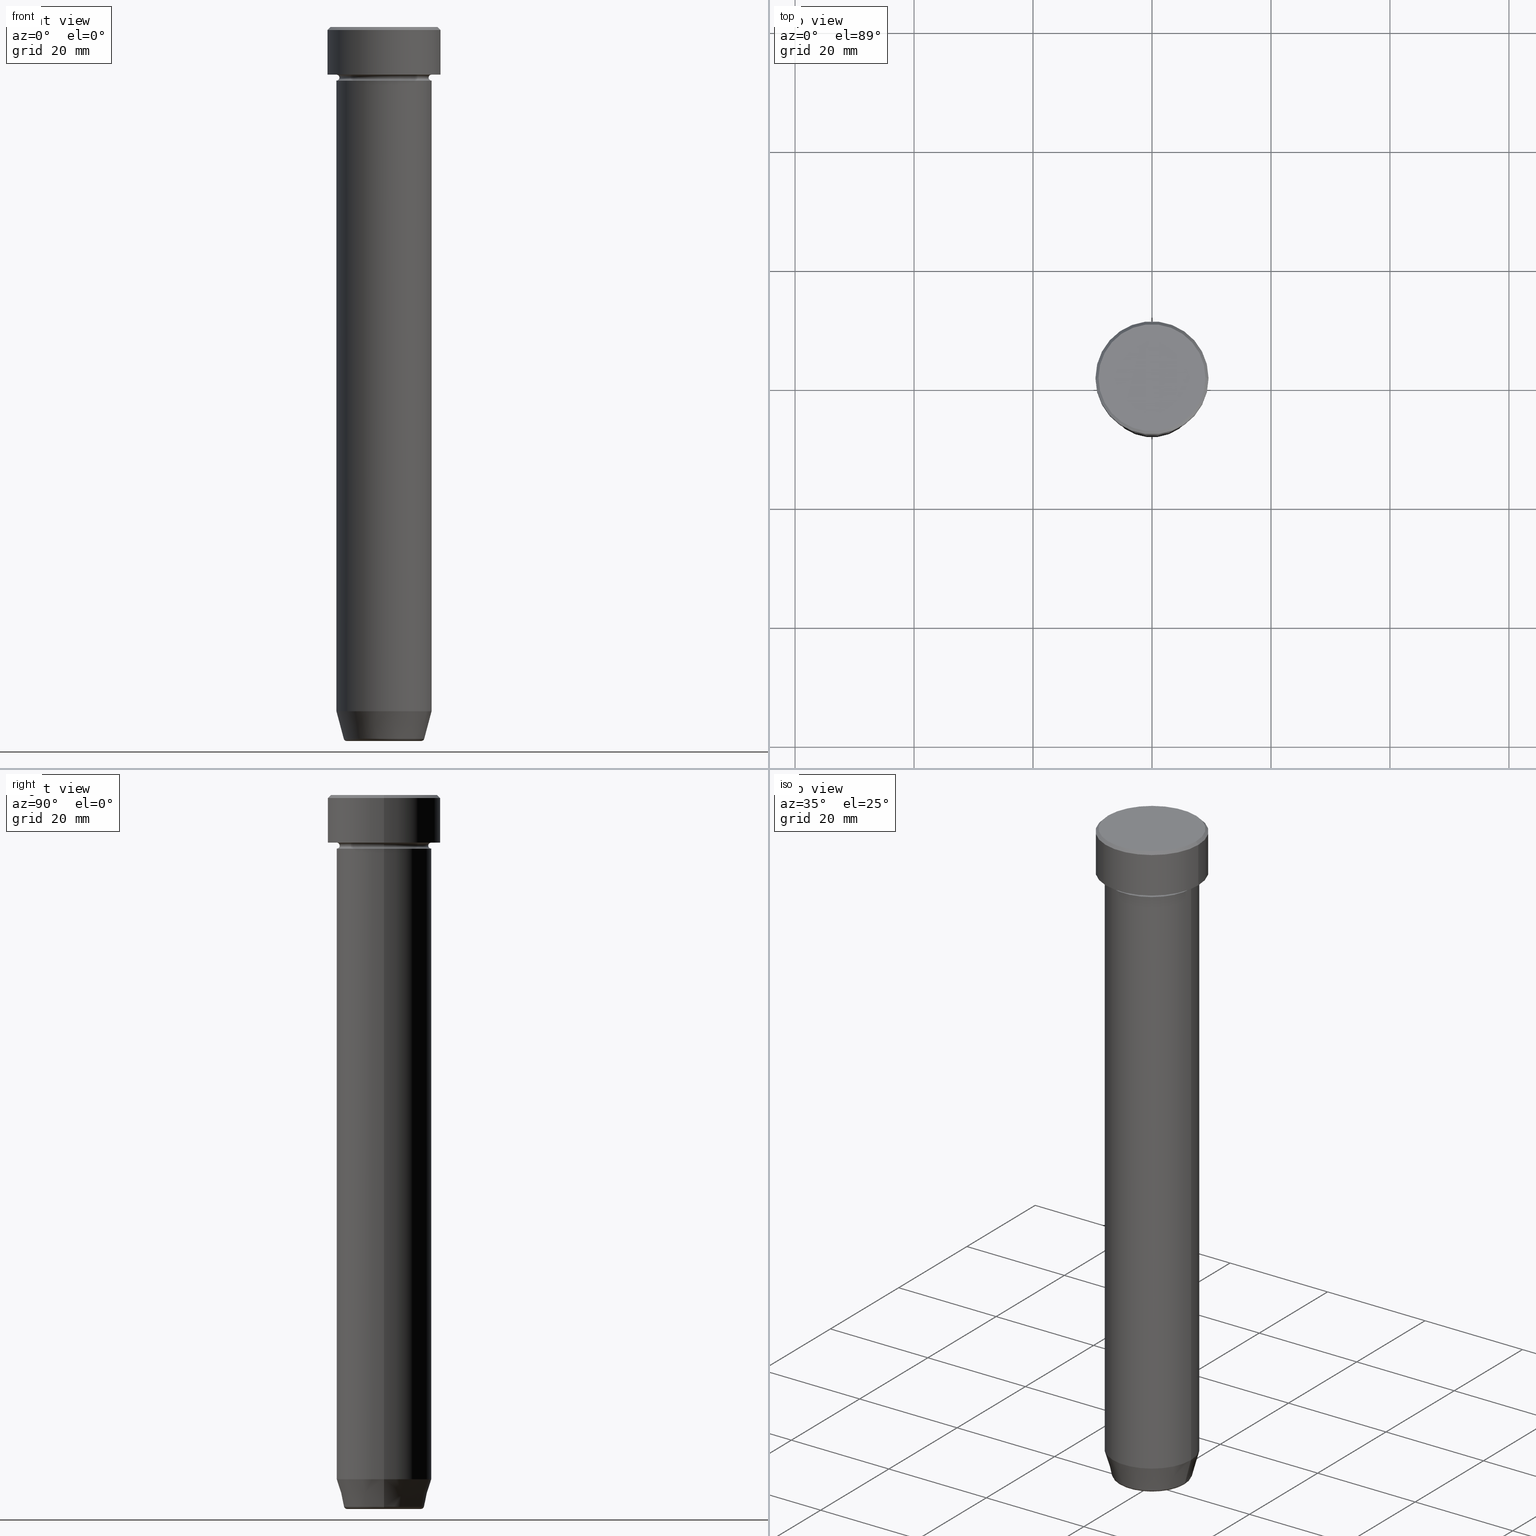
[diagram: canonical four-view strip — front | top / right | iso, engineering-drawing reading convention]
A machine part, canonical four-view strip (front | top / right | iso — engineering-drawing reading convention). The complete STEP part file that produces these views, byte-faithful:
ISO-10303-21;
HEADER;
FILE_DESCRIPTION (( 'STEP AP203' ),
    '1' );
FILE_NAME ('b387.STEP',
    '2024-01-02T22:11:33',
    ( '' ),
    ( '' ),
    'SwSTEP 2.0',
    'SolidWorks 2019',
    '' );
FILE_SCHEMA (( 'CONFIG_CONTROL_DESIGN' ));
ENDSEC;

DATA;
#1 = CONICAL_SURFACE ( 'NONE', #483, 6.660254037844381081, 0.2617993877991502405 ) ;
#2 = AXIS2_PLACEMENT_3D ( 'NONE', #136, #274, #544 ) ;
#3 = DIRECTION ( 'NONE',  ( -0.000000000000000000, -0.000000000000000000, 1.000000000000000000 ) ) ;
#4 = CC_DESIGN_PERSON_AND_ORGANIZATION_ASSIGNMENT ( #125, #270, ( #247 ) ) ;
#5 = VERTEX_POINT ( 'NONE', #123 ) ;
#6 = DIRECTION ( 'NONE',  ( 1.000000000000000000, 0.000000000000000000, 0.000000000000000000 ) ) ;
#7 = ORIENTED_EDGE ( 'NONE', *, *, #16, .F. ) ;
#8 = DIRECTION ( 'NONE',  ( 1.000000000000000000, 0.000000000000000000, 0.000000000000000000 ) ) ;
#9 = EDGE_LOOP ( 'NONE', ( #53, #69, #232, #341 ) ) ;
#10 = AXIS2_PLACEMENT_3D ( 'NONE', #20, #207, #579 ) ;
#11 = EDGE_CURVE ( 'NONE', #200, #164, #586, .T. ) ;
#12 = DIRECTION ( 'NONE',  ( 1.000000000000000000, 0.000000000000000000, 0.000000000000000000 ) ) ;
#13 = DIRECTION ( 'NONE',  ( -0.000000000000000000, -0.000000000000000000, 1.000000000000000000 ) ) ;
#14 = ORIENTED_EDGE ( 'NONE', *, *, #144, .F. ) ;
#15 = DIRECTION ( 'NONE',  ( 1.000000000000000000, 0.000000000000000000, 0.000000000000000000 ) ) ;
#16 = EDGE_CURVE ( 'NONE', #438, #337, #241, .T. ) ;
#17 = VERTEX_POINT ( 'NONE', #350 ) ;
#18 = TOROIDAL_SURFACE ( 'NONE', #70, 8.000000000000000000, 0.5000000000000000000 ) ;
#19 = LOCAL_TIME ( 23, 11, 33.00000000000000000, #493 ) ;
#20 = CARTESIAN_POINT ( 'NONE',  ( -8.000000000000000000, 0.000000000000000000, -8.500000000000000000 ) ) ;
#21 = ORIENTED_EDGE ( 'NONE', *, *, #439, .T. ) ;
#22 = CC_DESIGN_DATE_AND_TIME_ASSIGNMENT ( #283, #328, ( #61 ) ) ;
#23 = DIRECTION ( 'NONE',  ( -0.000000000000000000, -0.000000000000000000, 1.000000000000000000 ) ) ;
#24 = CYLINDRICAL_SURFACE ( 'NONE', #184, 8.000000000000000000 ) ;
#25 = ORIENTED_EDGE ( 'NONE', *, *, #504, .T. ) ;
#26 = DIRECTION ( 'NONE',  ( 1.000000000000000000, 0.000000000000000000, 0.000000000000000000 ) ) ;
#27 = ORIENTED_EDGE ( 'NONE', *, *, #11, .T. ) ;
#28 = VERTEX_POINT ( 'NONE', #577 ) ;
#29 = EDGE_CURVE ( 'NONE', #337, #196, #80, .T. ) ;
#30 = CIRCLE ( 'NONE', #547, 8.000000000000000000 ) ;
#31 = DIRECTION ( 'NONE',  ( 0.000000000000000000, 0.000000000000000000, -1.000000000000000000 ) ) ;
#32 = CC_DESIGN_SECURITY_CLASSIFICATION ( #61, ( #247 ) ) ;
#33 = CARTESIAN_POINT ( 'NONE',  ( 0.000000000000000000, 0.000000000000000000, -8.000000000000000000 ) ) ;
#34 = CARTESIAN_POINT ( 'NONE',  ( -8.000000000000000000, 9.797174393178825657E-16, 0.000000000000000000 ) ) ;
#35 = DIRECTION ( 'NONE',  ( 0.000000000000000000, 0.000000000000000000, -1.000000000000000000 ) ) ;
#36 = EDGE_CURVE ( 'NONE', #478, #438, #273, .T. ) ;
#37 = VECTOR ( 'NONE', #42, 1000.000000000000000 ) ;
#38 = CARTESIAN_POINT ( 'NONE',  ( -8.000000000000000000, 9.797174393178825657E-16, -9.000000000000001776 ) ) ;
#39 = CC_DESIGN_APPROVAL ( #460, ( #209 ) ) ;
#40 = ORIENTED_EDGE ( 'NONE', *, *, #194, .F. ) ;
#41 = PERSON_AND_ORGANIZATION_ROLE ( 'creator' ) ;
#42 = DIRECTION ( 'NONE',  ( -0.000000000000000000, -0.000000000000000000, 1.000000000000000000 ) ) ;
#43 = EDGE_CURVE ( 'NONE', #417, #256, #357, .T. ) ;
#44 = FACE_OUTER_BOUND ( 'NONE', #56, .T. ) ;
#45 = CLOSED_SHELL ( 'NONE', ( #340, #111, #542, #428, #57, #557, #524, #302 ) ) ;
#46 = EDGE_LOOP ( 'NONE', ( #162, #27, #395, #376 ) ) ;
#47 = CIRCLE ( 'NONE', #203, 6.276590543854900339 ) ;
#48 = LINE ( 'NONE', #199, #258 ) ;
#49 = ORIENTED_EDGE ( 'NONE', *, *, #327, .T. ) ;
#50 = AXIS2_PLACEMENT_3D ( 'NONE', #89, #451, #174 ) ;
#51 = AXIS2_PLACEMENT_3D ( 'NONE', #138, #31, #450 ) ;
#52 = CARTESIAN_POINT ( 'NONE',  ( 7.500000000000000000, 0.000000000000000000, -8.500000000000000000 ) ) ;
#53 = ORIENTED_EDGE ( 'NONE', *, *, #364, .F. ) ;
#54 = UNCERTAINTY_MEASURE_WITH_UNIT (LENGTH_MEASURE( 1.000000000000000082E-05 ), #128, 'distance_accuracy_value', 'NONE');
#55 = CARTESIAN_POINT ( 'NONE',  ( 0.000000000000000000, 0.000000000000000000, -119.5000000000000000 ) ) ;
#56 = EDGE_LOOP ( 'NONE', ( #330, #468, #214, #308 ) ) ;
#57 = ADVANCED_FACE ( 'NONE', ( #435 ), #24, .T. ) ;
#58 = CARTESIAN_POINT ( 'NONE',  ( 0.000000000000000000, 0.000000000000000000, -8.500000000000000000 ) ) ;
#59 = ORIENTED_EDGE ( 'NONE', *, *, #372, .T. ) ;
#60 = TOROIDAL_SURFACE ( 'NONE', #414, 8.000000000000000000, 0.5000000000000000000 ) ;
#61 = SECURITY_CLASSIFICATION ( '', '', #358 ) ;
#62 = FACE_OUTER_BOUND ( 'NONE', #78, .T. ) ;
#63 = ORIENTED_EDGE ( 'NONE', *, *, #406, .F. ) ;
#64 = EDGE_CURVE ( 'NONE', #196, #417, #107, .T. ) ;
#65 = APPLICATION_CONTEXT ( 'configuration controlled 3d designs of mechanical parts and assemblies' ) ;
#66 = DIRECTION ( 'NONE',  ( -1.000000000000000000, 0.000000000000000000, -0.000000000000000000 ) ) ;
#67 = DIRECTION ( 'NONE',  ( -0.000000000000000000, -0.000000000000000000, 1.000000000000000000 ) ) ;
#68 = CARTESIAN_POINT ( 'NONE',  ( 0.000000000000000000, 0.000000000000000000, 0.000000000000000000 ) ) ;
#69 = ORIENTED_EDGE ( 'NONE', *, *, #228, .T. ) ;
#70 = AXIS2_PLACEMENT_3D ( 'NONE', #336, #342, #514 ) ;
#71 = CIRCLE ( 'NONE', #345, 8.000000000000000000 ) ;
#72 = AXIS2_PLACEMENT_3D ( 'NONE', #68, #254, #75 ) ;
#73 = DIRECTION ( 'NONE',  ( 1.224646799147353207E-16, 1.000000000000000000, 0.000000000000000000 ) ) ;
#74 = ORIENTED_EDGE ( 'NONE', *, *, #64, .F. ) ;
#75 = DIRECTION ( 'NONE',  ( 1.000000000000000000, 0.000000000000000000, 0.000000000000000000 ) ) ;
#76 = ORIENTED_EDGE ( 'NONE', *, *, #504, .F. ) ;
#77 = EDGE_CURVE ( 'NONE', #572, #478, #47, .T. ) ;
#78 = EDGE_LOOP ( 'NONE', ( #567, #512, #227, #505 ) ) ;
#79 = VECTOR ( 'NONE', #314, 1000.000000000000000 ) ;
#80 = LINE ( 'NONE', #537, #331 ) ;
#81 = CIRCLE ( 'NONE', #215, 6.276590543854900339 ) ;
#82 = DATE_TIME_ROLE ( 'creation_date' ) ;
#83 =( GEOMETRIC_REPRESENTATION_CONTEXT ( 3 ) GLOBAL_UNCERTAINTY_ASSIGNED_CONTEXT ( ( #54 ) ) GLOBAL_UNIT_ASSIGNED_CONTEXT ( ( #128, #173, #225 ) ) REPRESENTATION_CONTEXT ( 'NONE', 'WORKASPACE' ) );
#84 = CARTESIAN_POINT ( 'NONE',  ( 0.000000000000000000, 0.000000000000000000, -22.00000000000000000 ) ) ;
#85 = EDGE_CURVE ( 'NONE', #455, #562, #588, .T. ) ;
#86 = DIRECTION ( 'NONE',  ( 1.000000000000000000, 0.000000000000000000, 0.000000000000000000 ) ) ;
#87 = AXIS2_PLACEMENT_3D ( 'NONE', #208, #67, #389 ) ;
#88 = PRODUCT_RELATED_PRODUCT_CATEGORY ( 'detail', '', ( #459 ) ) ;
#89 = CARTESIAN_POINT ( 'NONE',  ( 0.000000000000000000, 0.000000000000000000, -114.9999999999999858 ) ) ;
#90 = APPROVAL_ROLE ( '' ) ;
#91 = VECTOR ( 'NONE', #221, 1000.000000000000000 ) ;
#92 = CARTESIAN_POINT ( 'NONE',  ( 0.000000000000000000, 0.000000000000000000, -22.00000000000000000 ) ) ;
#93 = EDGE_CURVE ( 'NONE', #438, #417, #529, .T. ) ;
#94 = DIRECTION ( 'NONE',  ( 1.000000000000000000, 0.000000000000000000, 0.000000000000000000 ) ) ;
#95 = VERTEX_POINT ( 'NONE', #392 ) ;
#96 = DIRECTION ( 'NONE',  ( -0.000000000000000000, -0.000000000000000000, 1.000000000000000000 ) ) ;
#97 = VERTEX_POINT ( 'NONE', #575 ) ;
#98 = CARTESIAN_POINT ( 'NONE',  ( 8.000000000000000000, 0.000000000000000000, -9.000000000000001776 ) ) ;
#99 = ORIENTED_EDGE ( 'NONE', *, *, #156, .F. ) ;
#100 = AXIS2_PLACEMENT_3D ( 'NONE', #471, #522, #234 ) ;
#101 = LOCAL_TIME ( 23, 11, 33.00000000000000000, #179 ) ;
#102 = SHAPE_DEFINITION_REPRESENTATION ( #539, #477 ) ;
#103 = DIRECTION ( 'NONE',  ( -0.000000000000000000, -0.000000000000000000, 1.000000000000000000 ) ) ;
#104 = ADVANCED_FACE ( 'NONE', ( #271 ), #452, .F. ) ;
#105 = ORIENTED_EDGE ( 'NONE', *, *, #379, .T. ) ;
#106 = LINE ( 'NONE', #192, #309 ) ;
#107 = CIRCLE ( 'NONE', #521, 8.000000000000000000 ) ;
#108 = DIRECTION ( 'NONE',  ( -0.7071067811865489050, 0.000000000000000000, -0.7071067811865462405 ) ) ;
#109 = ORIENTED_EDGE ( 'NONE', *, *, #43, .T. ) ;
#110 = AXIS2_PLACEMENT_3D ( 'NONE', #339, #422, #377 ) ;
#111 = ADVANCED_FACE ( 'NONE', ( #324 ), #1, .T. ) ;
#112 = CARTESIAN_POINT ( 'NONE',  ( 0.000000000000000000, 0.000000000000000000, -120.0000000000000000 ) ) ;
#113 = EDGE_LOOP ( 'NONE', ( #277, #21, #315, #489 ) ) ;
#114 = CARTESIAN_POINT ( 'NONE',  ( 0.000000000000000000, 0.000000000000000000, -8.000000000000000000 ) ) ;
#115 = CARTESIAN_POINT ( 'NONE',  ( 6.660254037844381081, 0.000000000000000000, -120.0000000000000000 ) ) ;
#116 = CARTESIAN_POINT ( 'NONE',  ( 6.759553456999437770, 0.000000000000000000, -119.6294095225512564 ) ) ;
#117 = DIRECTION ( 'NONE',  ( -0.2588190451025214611, 3.169619151431774186E-17, 0.9659258262890679791 ) ) ;
#118 = CONICAL_SURFACE ( 'NONE', #456, 9.000000000000001776, 0.7853981633974501664 ) ;
#119 = ORIENTED_EDGE ( 'NONE', *, *, #550, .F. ) ;
#120 = AXIS2_PLACEMENT_3D ( 'NONE', #476, #366, #499 ) ;
#121 = PLANE ( 'NONE',  #415 ) ;
#122 = ADVANCED_FACE ( 'NONE', ( #500, #368 ), #549, .T. ) ;
#123 = CARTESIAN_POINT ( 'NONE',  ( -8.000000000000000000, 0.000000000000000000, -8.000000000000000000 ) ) ;
#124 = ORIENTED_EDGE ( 'NONE', *, *, #248, .F. ) ;
#125 = PERSON_AND_ORGANIZATION ( #211, #373 ) ;
#126 = ORIENTED_EDGE ( 'NONE', *, *, #550, .T. ) ;
#127 = EDGE_LOOP ( 'NONE', ( #443, #333 ) ) ;
#128 =( LENGTH_UNIT ( ) NAMED_UNIT ( * ) SI_UNIT ( .MILLI., .METRE. ) );
#129 = CYLINDRICAL_SURFACE ( 'NONE', #160, 8.000000000000000000 ) ;
#130 = EDGE_CURVE ( 'NONE', #478, #572, #81, .T. ) ;
#131 = AXIS2_PLACEMENT_3D ( 'NONE', #92, #587, #413 ) ;
#132 = PERSON_AND_ORGANIZATION_ROLE ( 'classification_officer' ) ;
#133 = CIRCLE ( 'NONE', #525, 6.759553456999436882 ) ;
#134 = CARTESIAN_POINT ( 'NONE',  ( 8.000000000000000000, 0.000000000000000000, -22.00000000000000000 ) ) ;
#135 = CC_DESIGN_PERSON_AND_ORGANIZATION_ASSIGNMENT ( #313, #583, ( #247 ) ) ;
#136 = CARTESIAN_POINT ( 'NONE',  ( 0.000000000000000000, 0.000000000000000000, 0.000000000000000000 ) ) ;
#137 = DIRECTION ( 'NONE',  ( -1.000000000000000000, 0.000000000000000000, 0.000000000000000000 ) ) ;
#138 = CARTESIAN_POINT ( 'NONE',  ( 0.000000000000000000, 0.000000000000000000, 0.000000000000000000 ) ) ;
#139 = DIRECTION ( 'NONE',  ( -0.000000000000000000, -0.000000000000000000, 1.000000000000000000 ) ) ;
#140 = ORIENTED_EDGE ( 'NONE', *, *, #530, .T. ) ;
#141 = AXIS2_PLACEMENT_3D ( 'NONE', #321, #230, #275 ) ;
#142 = CARTESIAN_POINT ( 'NONE',  ( 0.000000000000000000, 0.000000000000000000, 0.000000000000000000 ) ) ;
#143 = CIRCLE ( 'NONE', #10, 0.5000000000000004441 ) ;
#144 = EDGE_CURVE ( 'NONE', #520, #369, #325, .T. ) ;
#145 = CARTESIAN_POINT ( 'NONE',  ( 0.000000000000000000, 0.000000000000000000, -22.00000000000000000 ) ) ;
#146 = ORIENTED_EDGE ( 'NONE', *, *, #16, .T. ) ;
#147 = FACE_OUTER_BOUND ( 'NONE', #491, .T. ) ;
#148 = ORIENTED_EDGE ( 'NONE', *, *, #593, .F. ) ;
#149 = EDGE_CURVE ( 'NONE', #417, #196, #434, .T. ) ;
#150 = DIRECTION ( 'NONE',  ( -1.000000000000000000, 0.000000000000000000, 0.000000000000000000 ) ) ;
#151 = AXIS2_PLACEMENT_3D ( 'NONE', #329, #463, #511 ) ;
#152 = ORIENTED_EDGE ( 'NONE', *, *, #29, .T. ) ;
#153 = VECTOR ( 'NONE', #201, 1000.000000000000000 ) ;
#154 = ORIENTED_EDGE ( 'NONE', *, *, #473, .T. ) ;
#155 = CARTESIAN_POINT ( 'NONE',  ( -6.759553456999437770, 9.037619948979306213E-16, -119.6294095225512564 ) ) ;
#156 = EDGE_CURVE ( 'NONE', #423, #164, #181, .T. ) ;
#157 = ORIENTED_EDGE ( 'NONE', *, *, #593, .T. ) ;
#158 = CARTESIAN_POINT ( 'NONE',  ( 8.000000000000000000, 0.000000000000000000, -22.00000000000000000 ) ) ;
#159 = CARTESIAN_POINT ( 'NONE',  ( 6.276590543854900339, 0.000000000000000000, -119.5000000000000000 ) ) ;
#160 = AXIS2_PLACEMENT_3D ( 'NONE', #494, #454, #594 ) ;
#161 = DIRECTION ( 'NONE',  ( -0.000000000000000000, -0.000000000000000000, 1.000000000000000000 ) ) ;
#162 = ORIENTED_EDGE ( 'NONE', *, *, #530, .F. ) ;
#163 = CARTESIAN_POINT ( 'NONE',  ( -8.000000000000000000, 9.797174393178825657E-16, 0.000000000000000000 ) ) ;
#164 = VERTEX_POINT ( 'NONE', #38 ) ;
#165 = ADVANCED_FACE ( 'NONE', ( #223 ), #367, .T. ) ;
#166 = DIRECTION ( 'NONE',  ( -0.000000000000000000, -0.000000000000000000, 1.000000000000000000 ) ) ;
#167 = DIRECTION ( 'NONE',  ( -0.000000000000000000, -0.000000000000000000, 1.000000000000000000 ) ) ;
#168 = CIRCLE ( 'NONE', #141, 9.500000000000000000 ) ;
#169 = ORIENTED_EDGE ( 'NONE', *, *, #473, .F. ) ;
#170 = APPROVAL_PERSON_ORGANIZATION ( #497, #390, #412 ) ;
#171 = CARTESIAN_POINT ( 'NONE',  ( -6.276590543854900339, 7.982336011935116411E-16, -120.0000000000000000 ) ) ;
#172 = DIRECTION ( 'NONE',  ( -1.000000000000000000, 0.000000000000000000, 0.000000000000000000 ) ) ;
#173 =( NAMED_UNIT ( * ) PLANE_ANGLE_UNIT ( ) SI_UNIT ( $, .RADIAN. ) );
#174 = DIRECTION ( 'NONE',  ( 1.000000000000000000, 0.000000000000000000, 0.000000000000000000 ) ) ;
#175 = ADVANCED_FACE ( 'NONE', ( #551 ), #129, .T. ) ;
#176 = MECHANICAL_CONTEXT ( 'NONE', #65, 'mechanical' ) ;
#177 = DIRECTION ( 'NONE',  ( 1.000000000000000000, 0.000000000000000000, 0.000000000000000000 ) ) ;
#178 = CIRCLE ( 'NONE', #399, 9.500000000000000000 ) ;
#179 = COORDINATED_UNIVERSAL_TIME_OFFSET ( 1, 0, .AHEAD. ) ;
#180 = DIRECTION ( 'NONE',  ( 1.000000000000000000, 0.000000000000000000, 0.000000000000000000 ) ) ;
#181 = LINE ( 'NONE', #34, #37 ) ;
#182 = EDGE_LOOP ( 'NONE', ( #442, #49, #126, #76 ) ) ;
#183 = APPROVAL_DATE_TIME ( #546, #390 ) ;
#184 = AXIS2_PLACEMENT_3D ( 'NONE', #386, #569, #527 ) ;
#185 = EDGE_CURVE ( 'NONE', #455, #17, #503, .T. ) ;
#186 = FACE_OUTER_BOUND ( 'NONE', #354, .T. ) ;
#187 = CALENDAR_DATE ( 2024, 2, 1 ) ;
#188 = AXIS2_PLACEMENT_3D ( 'NONE', #145, #103, #12 ) ;
#189 = DIRECTION ( 'NONE',  ( 1.000000000000000000, 0.000000000000000000, 0.000000000000000000 ) ) ;
#190 = CIRCLE ( 'NONE', #548, 8.000000000000000000 ) ;
#191 = ORIENTED_EDGE ( 'NONE', *, *, #486, .F. ) ;
#192 = CARTESIAN_POINT ( 'NONE',  ( 9.000000000000001776, 1.102182119232617911E-15, 0.000000000000000000 ) ) ;
#193 = ORIENTED_EDGE ( 'NONE', *, *, #255, .F. ) ;
#194 = EDGE_CURVE ( 'NONE', #17, #95, #168, .T. ) ;
#195 = CARTESIAN_POINT ( 'NONE',  ( -8.000000000000000000, 9.797174393178825657E-16, -22.00000000000000000 ) ) ;
#196 = VERTEX_POINT ( 'NONE', #272 ) ;
#197 = LINE ( 'NONE', #381, #233 ) ;
#198 = ORIENTED_EDGE ( 'NONE', *, *, #346, .F. ) ;
#199 = CARTESIAN_POINT ( 'NONE',  ( -9.500000000000000000, 1.163414459189985485E-15, 0.000000000000000000 ) ) ;
#200 = VERTEX_POINT ( 'NONE', #449 ) ;
#201 = DIRECTION ( 'NONE',  ( -0.000000000000000000, -0.000000000000000000, 1.000000000000000000 ) ) ;
#202 = CARTESIAN_POINT ( 'NONE',  ( 8.000000000000000000, 0.000000000000000000, 0.000000000000000000 ) ) ;
#203 = AXIS2_PLACEMENT_3D ( 'NONE', #480, #205, #305 ) ;
#204 = DIRECTION ( 'NONE',  ( 0.000000000000000000, -0.000000000000000000, 1.000000000000000000 ) ) ;
#205 = DIRECTION ( 'NONE',  ( 0.000000000000000000, 0.000000000000000000, -1.000000000000000000 ) ) ;
#206 = TOROIDAL_SURFACE ( 'NONE', #555, 8.000000000000000000, 0.5000000000000000000 ) ;
#207 = DIRECTION ( 'NONE',  ( -0.000000000000000000, -1.000000000000000000, -0.000000000000000000 ) ) ;
#208 = CARTESIAN_POINT ( 'NONE',  ( 0.000000000000000000, 0.000000000000000000, -8.000000000000000000 ) ) ;
#209 = PRODUCT_DEFINITION ( 'NEZN�M�', '', #247, #290 ) ;
#210 = DIRECTION ( 'NONE',  ( 1.000000000000000000, 0.000000000000000000, 0.000000000000000000 ) ) ;
#211 = PERSON ( 'NEUR�EN�', 'NEUR�EN�', 'NEUR�EN�', ('NEUR�EN�'), ('NEUR�EN�'), ('NEUR�EN�') ) ;
#212 = CARTESIAN_POINT ( 'NONE',  ( -8.000000000000000000, 9.797174393178825657E-16, -8.500000000000000000 ) ) ;
#213 = CARTESIAN_POINT ( 'NONE',  ( 0.000000000000000000, 0.000000000000000000, -8.500000000000000000 ) ) ;
#214 = ORIENTED_EDGE ( 'NONE', *, *, #323, .F. ) ;
#215 = AXIS2_PLACEMENT_3D ( 'NONE', #498, #458, #180 ) ;
#216 = EDGE_LOOP ( 'NONE', ( #140, #59, #124, #119 ) ) ;
#217 = APPROVAL_STATUS ( 'not_yet_approved' ) ;
#218 = EDGE_CURVE ( 'NONE', #256, #470, #534, .T. ) ;
#219 = DIRECTION ( 'NONE',  ( -0.000000000000000000, -0.000000000000000000, 1.000000000000000000 ) ) ;
#220 = PERSON_AND_ORGANIZATION_ROLE ( 'design_owner' ) ;
#221 = DIRECTION ( 'NONE',  ( -0.000000000000000000, -0.000000000000000000, 1.000000000000000000 ) ) ;
#222 = APPLICATION_PROTOCOL_DEFINITION ( 'international standard', 'config_control_design', 1994, #510 ) ;
#223 = FACE_OUTER_BOUND ( 'NONE', #295, .T. ) ;
#224 = AXIS2_PLACEMENT_3D ( 'NONE', #484, #73, #347 ) ;
#225 =( NAMED_UNIT ( * ) SI_UNIT ( $, .STERADIAN. ) SOLID_ANGLE_UNIT ( ) );
#226 = DIRECTION ( 'NONE',  ( -1.000000000000000000, 0.000000000000000000, -0.000000000000000000 ) ) ;
#227 = ORIENTED_EDGE ( 'NONE', *, *, #323, .T. ) ;
#228 = EDGE_CURVE ( 'NONE', #562, #455, #278, .T. ) ;
#229 = CALENDAR_DATE ( 2024, 2, 1 ) ;
#230 = DIRECTION ( 'NONE',  ( 0.000000000000000000, 0.000000000000000000, -1.000000000000000000 ) ) ;
#231 = DIRECTION ( 'NONE',  ( -1.000000000000000000, -1.224646799147353454E-16, 0.000000000000000000 ) ) ;
#232 = ORIENTED_EDGE ( 'NONE', *, *, #185, .T. ) ;
#233 = VECTOR ( 'NONE', #108, 999.9999999999998863 ) ;
#234 = DIRECTION ( 'NONE',  ( 1.000000000000000000, 0.000000000000000000, 0.000000000000000000 ) ) ;
#235 = ADVANCED_FACE ( 'NONE', ( #186 ), #554, .T. ) ;
#236 = CIRCLE ( 'NONE', #410, 7.500000000000000000 ) ;
#237 = EDGE_LOOP ( 'NONE', ( #262, #243 ) ) ;
#238 = COORDINATED_UNIVERSAL_TIME_OFFSET ( 1, 0, .AHEAD. ) ;
#239 = APPROVAL ( #244, 'NEUR�EN�' ) ;
#240 = ORIENTED_EDGE ( 'NONE', *, *, #255, .T. ) ;
#241 = CIRCLE ( 'NONE', #304, 6.759553456999436882 ) ;
#242 = FACE_OUTER_BOUND ( 'NONE', #46, .T. ) ;
#243 = ORIENTED_EDGE ( 'NONE', *, *, #421, .T. ) ;
#244 = APPROVAL_STATUS ( 'not_yet_approved' ) ;
#245 = DIRECTION ( 'NONE',  ( -0.000000000000000000, -0.000000000000000000, 1.000000000000000000 ) ) ;
#246 = ORIENTED_EDGE ( 'NONE', *, *, #149, .F. ) ;
#247 = PRODUCT_DEFINITION_FORMATION_WITH_SPECIFIED_SOURCE ( 'LIBOVOLN�', '', #459, .NOT_KNOWN. ) ;
#248 = EDGE_CURVE ( 'NONE', #5, #97, #388, .T. ) ;
#249 = CARTESIAN_POINT ( 'NONE',  ( -8.000000000000000000, 9.797174393178825657E-16, -22.00000000000000000 ) ) ;
#250 = EDGE_LOOP ( 'NONE', ( #99, #430, #348, #515 ) ) ;
#251 = CYLINDRICAL_SURFACE ( 'NONE', #581, 9.500000000000000000 ) ;
#252 = DIRECTION ( 'NONE',  ( -1.000000000000000000, 1.224646799147353454E-16, 0.000000000000000000 ) ) ;
#253 = CLOSED_SHELL ( 'NONE', ( #396, #104, #266, #235, #467, #165, #573, #566, #122, #175, #282, #276, #580 ) ) ;
#254 = DIRECTION ( 'NONE',  ( -0.000000000000000000, -0.000000000000000000, 1.000000000000000000 ) ) ;
#255 = EDGE_CURVE ( 'NONE', #470, #256, #30, .T. ) ;
#256 = VERTEX_POINT ( 'NONE', #134 ) ;
#257 = AXIS2_PLACEMENT_3D ( 'NONE', #462, #564, #231 ) ;
#258 = VECTOR ( 'NONE', #3, 1000.000000000000000 ) ;
#259 = LOCAL_TIME ( 23, 11, 33.00000000000000000, #238 ) ;
#260 = CARTESIAN_POINT ( 'NONE',  ( 0.000000000000000000, 8.572527594031472993E-15, -120.0000000000000000 ) ) ;
#261 = ORIENTED_EDGE ( 'NONE', *, *, #93, .T. ) ;
#262 = ORIENTED_EDGE ( 'NONE', *, *, #296, .T. ) ;
#263 = DIRECTION ( 'NONE',  ( 1.000000000000000000, 0.000000000000000000, 0.000000000000000000 ) ) ;
#264 = EDGE_LOOP ( 'NONE', ( #420, #25 ) ) ;
#265 = ORIENTED_EDGE ( 'NONE', *, *, #346, .T. ) ;
#266 = ADVANCED_FACE ( 'NONE', ( #242 ), #60, .F. ) ;
#267 = FACE_OUTER_BOUND ( 'NONE', #578, .T. ) ;
#268 = ORIENTED_EDGE ( 'NONE', *, *, #439, .F. ) ;
#269 = AXIS2_PLACEMENT_3D ( 'NONE', #280, #35, #137 ) ;
#270 = PERSON_AND_ORGANIZATION_ROLE ( 'creator' ) ;
#271 = FACE_OUTER_BOUND ( 'NONE', #216, .T. ) ;
#272 = CARTESIAN_POINT ( 'NONE',  ( -8.000000000000000000, 9.797174393178825657E-16, -114.9999999999999858 ) ) ;
#273 = CIRCLE ( 'NONE', #293, 0.5000000000000004441 ) ;
#274 = DIRECTION ( 'NONE',  ( 0.000000000000000000, 0.000000000000000000, 1.000000000000000000 ) ) ;
#275 = DIRECTION ( 'NONE',  ( 1.000000000000000000, 0.000000000000000000, 0.000000000000000000 ) ) ;
#276 = ADVANCED_FACE ( 'NONE', ( #416 ), #206, .F. ) ;
#277 = ORIENTED_EDGE ( 'NONE', *, *, #149, .T. ) ;
#278 = CIRCLE ( 'NONE', #334, 9.500000000000000000 ) ;
#279 = COORDINATED_UNIVERSAL_TIME_OFFSET ( 1, 0, .AHEAD. ) ;
#280 = CARTESIAN_POINT ( 'NONE',  ( 0.000000000000000000, 0.000000000000000000, -8.500000000000000000 ) ) ;
#281 = DIRECTION ( 'NONE',  ( -0.000000000000000000, -0.000000000000000000, 1.000000000000000000 ) ) ;
#282 = ADVANCED_FACE ( 'NONE', ( #374 ), #18, .F. ) ;
#283 = DATE_AND_TIME ( #187, #517 ) ;
#284 = DIRECTION ( 'NONE',  ( 1.000000000000000000, 0.000000000000000000, 0.000000000000000000 ) ) ;
#285 = EDGE_LOOP ( 'NONE', ( #169, #559, #312, #148 ) ) ;
#286 = AXIS2_PLACEMENT_3D ( 'NONE', #359, #371, #545 ) ;
#287 = DIRECTION ( 'NONE',  ( -1.000000000000000000, 0.000000000000000000, 0.000000000000000000 ) ) ;
#288 = APPROVAL_PERSON_ORGANIZATION ( #502, #460, #90 ) ;
#289 = EDGE_LOOP ( 'NONE', ( #382, #464 ) ) ;
#290 = DESIGN_CONTEXT ( 'detailed design', #510, 'design' ) ;
#291 = CARTESIAN_POINT ( 'NONE',  ( 0.000000000000000000, 0.000000000000000000, -8.500000000000000000 ) ) ;
#292 = EDGE_LOOP ( 'NONE', ( #268, #352, #109, #193 ) ) ;
#293 = AXIS2_PLACEMENT_3D ( 'NONE', #159, #532, #487 ) ;
#294 = CARTESIAN_POINT ( 'NONE',  ( 0.000000000000000000, 0.000000000000000000, -0.4999999999999968914 ) ) ;
#295 = EDGE_LOOP ( 'NONE', ( #198, #191 ) ) ;
#296 = EDGE_CURVE ( 'NONE', #28, #538, #495, .T. ) ;
#297 = PLANE ( 'NONE',  #120 ) ;
#298 = VERTEX_POINT ( 'NONE', #52 ) ;
#299 = APPROVAL_PERSON_ORGANIZATION ( #560, #239, #380 ) ;
#300 = FACE_OUTER_BOUND ( 'NONE', #9, .T. ) ;
#301 = DIRECTION ( 'NONE',  ( 1.000000000000000000, 0.000000000000000000, 0.000000000000000000 ) ) ;
#302 = ADVANCED_FACE ( 'NONE', ( #469 ), #353, .T. ) ;
#303 = FACE_OUTER_BOUND ( 'NONE', #113, .T. ) ;
#304 = AXIS2_PLACEMENT_3D ( 'NONE', #582, #541, #172 ) ;
#305 = DIRECTION ( 'NONE',  ( 1.000000000000000000, 0.000000000000000000, 0.000000000000000000 ) ) ;
#306 = VECTOR ( 'NONE', #482, 1000.000000000000114 ) ;
#307 = PLANE ( 'NONE',  #446 ) ;
#308 = ORIENTED_EDGE ( 'NONE', *, *, #356, .F. ) ;
#309 = VECTOR ( 'NONE', #375, 999.9999999999998863 ) ;
#310 = LOCAL_TIME ( 23, 11, 33.00000000000000000, #279 ) ;
#311 = CARTESIAN_POINT ( 'NONE',  ( 9.500000000000000000, 0.000000000000000000, -8.000000000000000000 ) ) ;
#312 = ORIENTED_EDGE ( 'NONE', *, *, #36, .T. ) ;
#313 = PERSON_AND_ORGANIZATION ( #211, #373 ) ;
#314 = DIRECTION ( 'NONE',  ( -0.000000000000000000, -0.000000000000000000, 1.000000000000000000 ) ) ;
#315 = ORIENTED_EDGE ( 'NONE', *, *, #218, .F. ) ;
#316 = APPROVAL_DATE_TIME ( #457, #460 ) ;
#317 = DIRECTION ( 'NONE',  ( -1.000000000000000000, 0.000000000000000000, 0.000000000000000000 ) ) ;
#318 = AXIS2_PLACEMENT_3D ( 'NONE', #591, #411, #226 ) ;
#319 = AXIS2_PLACEMENT_3D ( 'NONE', #528, #535, #15 ) ;
#320 = COORDINATED_UNIVERSAL_TIME_OFFSET ( 1, 0, .AHEAD. ) ;
#321 = CARTESIAN_POINT ( 'NONE',  ( 0.000000000000000000, 0.000000000000000000, -0.4999999999999968914 ) ) ;
#322 = CARTESIAN_POINT ( 'NONE',  ( 0.000000000000000000, 0.000000000000000000, -119.6294095225512564 ) ) ;
#323 = EDGE_CURVE ( 'NONE', #95, #17, #178, .T. ) ;
#324 = FACE_OUTER_BOUND ( 'NONE', #401, .T. ) ;
#325 = LINE ( 'NONE', #584, #424 ) ;
#326 = CARTESIAN_POINT ( 'NONE',  ( 9.500000000000000000, 0.000000000000000000, 0.000000000000000000 ) ) ;
#327 = EDGE_CURVE ( 'NONE', #298, #200, #363, .T. ) ;
#328 = DATE_TIME_ROLE ( 'classification_date' ) ;
#329 = CARTESIAN_POINT ( 'NONE',  ( 8.000000000000000000, 0.000000000000000000, -8.500000000000000000 ) ) ;
#330 = ORIENTED_EDGE ( 'NONE', *, *, #421, .F. ) ;
#331 = VECTOR ( 'NONE', #117, 1000.000000000000114 ) ;
#332 = DIRECTION ( 'NONE',  ( -0.000000000000000000, -0.000000000000000000, 1.000000000000000000 ) ) ;
#333 = ORIENTED_EDGE ( 'NONE', *, *, #77, .T. ) ;
#334 = AXIS2_PLACEMENT_3D ( 'NONE', #597, #362, #408 ) ;
#335 = CC_DESIGN_APPROVAL ( #239, ( #61 ) ) ;
#336 = CARTESIAN_POINT ( 'NONE',  ( 0.000000000000000000, 0.000000000000000000, -8.500000000000000000 ) ) ;
#337 = VERTEX_POINT ( 'NONE', #155 ) ;
#338 = MANIFOLD_SOLID_BREP ( 'Zkosen�1', #253 ) ;
#339 = CARTESIAN_POINT ( 'NONE',  ( 0.000000000000000000, 0.000000000000000000, 0.000000000000000000 ) ) ;
#340 = ADVANCED_FACE ( 'NONE', ( #147 ), #516, .T. ) ;
#341 = ORIENTED_EDGE ( 'NONE', *, *, #194, .T. ) ;
#342 = DIRECTION ( 'NONE',  ( -0.000000000000000000, -0.000000000000000000, 1.000000000000000000 ) ) ;
#343 = DIRECTION ( 'NONE',  ( 1.000000000000000000, 0.000000000000000000, 0.000000000000000000 ) ) ;
#344 = DIRECTION ( 'NONE',  ( 1.224646799147353207E-16, 1.000000000000000000, 0.000000000000000000 ) ) ;
#345 = AXIS2_PLACEMENT_3D ( 'NONE', #114, #441, #429 ) ;
#346 = EDGE_CURVE ( 'NONE', #520, #423, #474, .T. ) ;
#347 = DIRECTION ( 'NONE',  ( -1.000000000000000000, 1.224646799147351482E-16, 0.000000000000000000 ) ) ;
#348 = ORIENTED_EDGE ( 'NONE', *, *, #144, .T. ) ;
#349 = CARTESIAN_POINT ( 'NONE',  ( 0.000000000000000000, 0.000000000000000000, 0.000000000000000000 ) ) ;
#350 = CARTESIAN_POINT ( 'NONE',  ( 9.500000000000000000, 0.000000000000000000, -0.4999999999999968914 ) ) ;
#351 = DIRECTION ( 'NONE',  ( 1.000000000000000000, 0.000000000000000000, 0.000000000000000000 ) ) ;
#352 = ORIENTED_EDGE ( 'NONE', *, *, #64, .T. ) ;
#353 = TOROIDAL_SURFACE ( 'NONE', #445, 6.276590543854900339, 0.5000000000000000000 ) ;
#354 = EDGE_LOOP ( 'NONE', ( #265, #383, #398, #14 ) ) ;
#355 = DIRECTION ( 'NONE',  ( 0.000000000000000000, 0.000000000000000000, -1.000000000000000000 ) ) ;
#356 = EDGE_CURVE ( 'NONE', #28, #95, #197, .T. ) ;
#357 = LINE ( 'NONE', #202, #79 ) ;
#358 = SECURITY_CLASSIFICATION_LEVEL ( 'unclassified' ) ;
#359 = CARTESIAN_POINT ( 'NONE',  ( 0.000000000000000000, 8.000000000000000000, -22.00000000000000000 ) ) ;
#360 = CC_DESIGN_PERSON_AND_ORGANIZATION_ASSIGNMENT ( #447, #132, ( #61 ) ) ;
#361 = PERSON_AND_ORGANIZATION ( #211, #373 ) ;
#362 = DIRECTION ( 'NONE',  ( -0.000000000000000000, -0.000000000000000000, 1.000000000000000000 ) ) ;
#363 = CIRCLE ( 'NONE', #100, 7.500000000000000000 ) ;
#364 = EDGE_CURVE ( 'NONE', #562, #95, #48, .T. ) ;
#365 = CIRCLE ( 'NONE', #485, 8.000000000000000000 ) ;
#366 = DIRECTION ( 'NONE',  ( 0.000000000000000000, -0.000000000000000000, 1.000000000000000000 ) ) ;
#367 = PLANE ( 'NONE',  #286 ) ;
#368 = FACE_OUTER_BOUND ( 'NONE', #289, .T. ) ;
#369 = VERTEX_POINT ( 'NONE', #98 ) ;
#370 = DIRECTION ( 'NONE',  ( -1.000000000000000000, 0.000000000000000000, 0.000000000000000000 ) ) ;
#371 = DIRECTION ( 'NONE',  ( 0.000000000000000000, 0.000000000000000000, -1.000000000000000000 ) ) ;
#372 = EDGE_CURVE ( 'NONE', #298, #97, #592, .T. ) ;
#373 = ORGANIZATION ( 'NEUR�EN�', 'NEUR�EN�', '' ) ;
#374 = FACE_OUTER_BOUND ( 'NONE', #552, .T. ) ;
#375 = DIRECTION ( 'NONE',  ( 0.7071067811865489050, 8.659560562354950115E-17, -0.7071067811865462405 ) ) ;
#376 = ORIENTED_EDGE ( 'NONE', *, *, #379, .F. ) ;
#377 = DIRECTION ( 'NONE',  ( 1.000000000000000000, 0.000000000000000000, 0.000000000000000000 ) ) ;
#378 = ORIENTED_EDGE ( 'NONE', *, *, #11, .F. ) ;
#379 = EDGE_CURVE ( 'NONE', #298, #369, #590, .T. ) ;
#380 = APPROVAL_ROLE ( '' ) ;
#381 = CARTESIAN_POINT ( 'NONE',  ( -9.000000000000001776, 0.000000000000000000, 0.000000000000000000 ) ) ;
#382 = ORIENTED_EDGE ( 'NONE', *, *, #85, .F. ) ;
#383 = ORIENTED_EDGE ( 'NONE', *, *, #156, .T. ) ;
#384 = CARTESIAN_POINT ( 'NONE',  ( 0.000000000000000000, 0.000000000000000000, -22.00000000000000000 ) ) ;
#385 = CC_DESIGN_DATE_AND_TIME_ASSIGNMENT ( #589, #82, ( #209 ) ) ;
#386 = CARTESIAN_POINT ( 'NONE',  ( 0.000000000000000000, 0.000000000000000000, 0.000000000000000000 ) ) ;
#387 = DIRECTION ( 'NONE',  ( 1.000000000000000000, 0.000000000000000000, 0.000000000000000000 ) ) ;
#388 = CIRCLE ( 'NONE', #465, 8.000000000000000000 ) ;
#389 = DIRECTION ( 'NONE',  ( 1.000000000000000000, 0.000000000000000000, 0.000000000000000000 ) ) ;
#390 = APPROVAL ( #404, 'NEUR�EN�' ) ;
#391 = CARTESIAN_POINT ( 'NONE',  ( 0.000000000000000000, 0.000000000000000000, -9.000000000000001776 ) ) ;
#392 = CARTESIAN_POINT ( 'NONE',  ( -9.500000000000000000, 1.163414459189985485E-15, -0.4999999999999968914 ) ) ;
#393 = FACE_OUTER_BOUND ( 'NONE', #427, .T. ) ;
#394 = CARTESIAN_POINT ( 'NONE',  ( 0.000000000000000000, 0.000000000000000000, -114.9999999999999858 ) ) ;
#395 = ORIENTED_EDGE ( 'NONE', *, *, #448, .T. ) ;
#396 = ADVANCED_FACE ( 'NONE', ( #44 ), #118, .T. ) ;
#397 = DIRECTION ( 'NONE',  ( 1.000000000000000000, 0.000000000000000000, 0.000000000000000000 ) ) ;
#398 = ORIENTED_EDGE ( 'NONE', *, *, #513, .F. ) ;
#399 = AXIS2_PLACEMENT_3D ( 'NONE', #294, #518, #189 ) ;
#400 = CONICAL_SURFACE ( 'NONE', #563, 6.660254037844381081, 0.2617993877991502405 ) ;
#401 = EDGE_LOOP ( 'NONE', ( #146, #152, #246, #523 ) ) ;
#402 = PERSON_AND_ORGANIZATION ( #211, #373 ) ;
#403 = CARTESIAN_POINT ( 'NONE',  ( 0.000000000000000000, 0.000000000000000000, -120.0000000000000000 ) ) ;
#404 = APPROVAL_STATUS ( 'not_yet_approved' ) ;
#405 = DIRECTION ( 'NONE',  ( -0.000000000000000000, -0.000000000000000000, 1.000000000000000000 ) ) ;
#406 = EDGE_CURVE ( 'NONE', #538, #17, #106, .T. ) ;
#407 = CALENDAR_DATE ( 2024, 2, 1 ) ;
#408 = DIRECTION ( 'NONE',  ( 1.000000000000000000, 0.000000000000000000, 0.000000000000000000 ) ) ;
#409 = AXIS2_PLACEMENT_3D ( 'NONE', #561, #245, #426 ) ;
#410 = AXIS2_PLACEMENT_3D ( 'NONE', #213, #576, #343 ) ;
#411 = DIRECTION ( 'NONE',  ( 0.000000000000000000, 0.000000000000000000, -1.000000000000000000 ) ) ;
#412 = APPROVAL_ROLE ( '' ) ;
#413 = DIRECTION ( 'NONE',  ( 1.000000000000000000, 0.000000000000000000, 0.000000000000000000 ) ) ;
#414 = AXIS2_PLACEMENT_3D ( 'NONE', #58, #96, #284 ) ;
#415 = AXIS2_PLACEMENT_3D ( 'NONE', #260, #204, #387 ) ;
#416 = FACE_OUTER_BOUND ( 'NONE', #182, .T. ) ;
#417 = VERTEX_POINT ( 'NONE', #558 ) ;
#418 = APPROVAL_DATE_TIME ( #461, #239 ) ;
#419 = DIRECTION ( 'NONE',  ( -0.000000000000000000, -0.000000000000000000, 1.000000000000000000 ) ) ;
#420 = ORIENTED_EDGE ( 'NONE', *, *, #248, .T. ) ;
#421 = EDGE_CURVE ( 'NONE', #538, #28, #536, .T. ) ;
#422 = DIRECTION ( 'NONE',  ( -0.000000000000000000, -0.000000000000000000, 1.000000000000000000 ) ) ;
#423 = VERTEX_POINT ( 'NONE', #195 ) ;
#424 = VECTOR ( 'NONE', #139, 1000.000000000000000 ) ;
#425 = AXIS2_PLACEMENT_3D ( 'NONE', #349, #531, #397 ) ;
#426 = DIRECTION ( 'NONE',  ( 1.000000000000000000, 0.000000000000000000, 0.000000000000000000 ) ) ;
#427 = EDGE_LOOP ( 'NONE', ( #432, #157, #261, #74 ) ) ;
#428 = ADVANCED_FACE ( 'NONE', ( #574 ), #307, .F. ) ;
#429 = DIRECTION ( 'NONE',  ( -1.000000000000000000, 0.000000000000000000, 0.000000000000000000 ) ) ;
#430 = ORIENTED_EDGE ( 'NONE', *, *, #486, .T. ) ;
#431 = CARTESIAN_POINT ( 'NONE',  ( 0.000000000000000000, 0.000000000000000000, 0.000000000000000000 ) ) ;
#432 = ORIENTED_EDGE ( 'NONE', *, *, #29, .F. ) ;
#433 = CARTESIAN_POINT ( 'NONE',  ( 0.000000000000000000, 0.000000000000000000, -9.000000000000001776 ) ) ;
#434 = CIRCLE ( 'NONE', #50, 8.000000000000000000 ) ;
#435 = FACE_OUTER_BOUND ( 'NONE', #292, .T. ) ;
#436 = CC_DESIGN_APPROVAL ( #390, ( #247 ) ) ;
#437 = CARTESIAN_POINT ( 'NONE',  ( -9.500000000000000000, 1.163414459189985485E-15, -8.000000000000000000 ) ) ;
#438 = VERTEX_POINT ( 'NONE', #116 ) ;
#439 = EDGE_CURVE ( 'NONE', #196, #470, #481, .T. ) ;
#440 = ORIENTED_EDGE ( 'NONE', *, *, #513, .T. ) ;
#441 = DIRECTION ( 'NONE',  ( -0.000000000000000000, -0.000000000000000000, 1.000000000000000000 ) ) ;
#442 = ORIENTED_EDGE ( 'NONE', *, *, #372, .F. ) ;
#443 = ORIENTED_EDGE ( 'NONE', *, *, #130, .T. ) ;
#444 = EDGE_LOOP ( 'NONE', ( #472, #240 ) ) ;
#445 = AXIS2_PLACEMENT_3D ( 'NONE', #55, #332, #8 ) ;
#446 = AXIS2_PLACEMENT_3D ( 'NONE', #384, #355, #66 ) ;
#447 = PERSON_AND_ORGANIZATION ( #211, #373 ) ;
#448 = EDGE_CURVE ( 'NONE', #164, #369, #365, .T. ) ;
#449 = CARTESIAN_POINT ( 'NONE',  ( -7.500000000000000000, 9.491012693391985815E-16, -8.500000000000000000 ) ) ;
#450 = DIRECTION ( 'NONE',  ( -1.000000000000000000, 0.000000000000000000, 0.000000000000000000 ) ) ;
#451 = DIRECTION ( 'NONE',  ( -0.000000000000000000, -0.000000000000000000, 1.000000000000000000 ) ) ;
#452 = TOROIDAL_SURFACE ( 'NONE', #269, 8.000000000000000000, 0.5000000000000000000 ) ;
#453 = APPLICATION_PROTOCOL_DEFINITION ( 'international standard', 'config_control_design', 1994, #65 ) ;
#454 = DIRECTION ( 'NONE',  ( -0.000000000000000000, -0.000000000000000000, 1.000000000000000000 ) ) ;
#455 = VERTEX_POINT ( 'NONE', #311 ) ;
#456 = AXIS2_PLACEMENT_3D ( 'NONE', #565, #519, #287 ) ;
#457 = DATE_AND_TIME ( #229, #310 ) ;
#458 = DIRECTION ( 'NONE',  ( 0.000000000000000000, 0.000000000000000000, -1.000000000000000000 ) ) ;
#459 = PRODUCT ( 'b387', 'b387', '', ( #176 ) ) ;
#460 = APPROVAL ( #217, 'NEUR�EN�' ) ;
#461 = DATE_AND_TIME ( #508, #259 ) ;
#462 = CARTESIAN_POINT ( 'NONE',  ( 8.000000000000000000, 9.797174393178825657E-16, -8.500000000000000000 ) ) ;
#463 = DIRECTION ( 'NONE',  ( 0.000000000000000000, -1.000000000000000000, 0.000000000000000000 ) ) ;
#464 = ORIENTED_EDGE ( 'NONE', *, *, #228, .F. ) ;
#465 = AXIS2_PLACEMENT_3D ( 'NONE', #33, #219, #317 ) ;
#466 = CARTESIAN_POINT ( 'NONE',  ( 0.000000000000000000, 0.000000000000000000, 0.000000000000000000 ) ) ;
#467 = ADVANCED_FACE ( 'NONE', ( #62 ), #251, .T. ) ;
#468 = ORIENTED_EDGE ( 'NONE', *, *, #406, .T. ) ;
#469 = FACE_OUTER_BOUND ( 'NONE', #285, .T. ) ;
#470 = VERTEX_POINT ( 'NONE', #249 ) ;
#471 = CARTESIAN_POINT ( 'NONE',  ( 0.000000000000000000, 0.000000000000000000, -8.500000000000000000 ) ) ;
#472 = ORIENTED_EDGE ( 'NONE', *, *, #218, .T. ) ;
#473 = EDGE_CURVE ( 'NONE', #572, #337, #475, .T. ) ;
#474 = CIRCLE ( 'NONE', #188, 8.000000000000000000 ) ;
#475 = CIRCLE ( 'NONE', #224, 0.5000000000000004441 ) ;
#476 = CARTESIAN_POINT ( 'NONE',  ( 0.000000000000000000, 0.000000000000000000, 0.000000000000000000 ) ) ;
#477 = ADVANCED_BREP_SHAPE_REPRESENTATION ( 'b387', ( #338, #553, #2 ), #83 ) ;
#478 = VERTEX_POINT ( 'NONE', #568 ) ;
#479 = CYLINDRICAL_SURFACE ( 'NONE', #425, 9.500000000000000000 ) ;
#480 = CARTESIAN_POINT ( 'NONE',  ( 0.000000000000000000, 0.000000000000000000, -120.0000000000000000 ) ) ;
#481 = LINE ( 'NONE', #163, #153 ) ;
#482 = DIRECTION ( 'NONE',  ( 0.2588190451025214611, 0.000000000000000000, 0.9659258262890679791 ) ) ;
#483 = AXIS2_PLACEMENT_3D ( 'NONE', #403, #281, #86 ) ;
#484 = CARTESIAN_POINT ( 'NONE',  ( -6.276590543854900339, 7.686606519090449012E-16, -119.5000000000000000 ) ) ;
#485 = AXIS2_PLACEMENT_3D ( 'NONE', #391, #161, #351 ) ;
#486 = EDGE_CURVE ( 'NONE', #423, #520, #507, .T. ) ;
#487 = DIRECTION ( 'NONE',  ( 0.000000000000000000, 0.000000000000000000, -1.000000000000000000 ) ) ;
#488 = FACE_OUTER_BOUND ( 'NONE', #127, .T. ) ;
#489 = ORIENTED_EDGE ( 'NONE', *, *, #43, .F. ) ;
#490 = DIRECTION ( 'NONE',  ( -0.000000000000000000, -0.000000000000000000, 1.000000000000000000 ) ) ;
#491 = EDGE_LOOP ( 'NONE', ( #501, #154, #7, #533 ) ) ;
#492 = CC_DESIGN_PERSON_AND_ORGANIZATION_ASSIGNMENT ( #361, #220, ( #459 ) ) ;
#493 = COORDINATED_UNIVERSAL_TIME_OFFSET ( 1, 0, .AHEAD. ) ;
#494 = CARTESIAN_POINT ( 'NONE',  ( 0.000000000000000000, 0.000000000000000000, 0.000000000000000000 ) ) ;
#495 = CIRCLE ( 'NONE', #110, 9.000000000000001776 ) ;
#496 = AXIS2_PLACEMENT_3D ( 'NONE', #466, #419, #6 ) ;
#497 = PERSON_AND_ORGANIZATION ( #211, #373 ) ;
#498 = CARTESIAN_POINT ( 'NONE',  ( 0.000000000000000000, 0.000000000000000000, -120.0000000000000000 ) ) ;
#499 = DIRECTION ( 'NONE',  ( 1.000000000000000000, 0.000000000000000000, 0.000000000000000000 ) ) ;
#500 = FACE_BOUND ( 'NONE', #264, .T. ) ;
#501 = ORIENTED_EDGE ( 'NONE', *, *, #77, .F. ) ;
#502 = PERSON_AND_ORGANIZATION ( #211, #373 ) ;
#503 = LINE ( 'NONE', #326, #91 ) ;
#504 = EDGE_CURVE ( 'NONE', #97, #5, #71, .T. ) ;
#505 = ORIENTED_EDGE ( 'NONE', *, *, #185, .F. ) ;
#506 = AXIS2_PLACEMENT_3D ( 'NONE', #142, #509, #94 ) ;
#507 = CIRCLE ( 'NONE', #319, 8.000000000000000000 ) ;
#508 = CALENDAR_DATE ( 2024, 2, 1 ) ;
#509 = DIRECTION ( 'NONE',  ( -0.000000000000000000, -0.000000000000000000, 1.000000000000000000 ) ) ;
#510 = APPLICATION_CONTEXT ( 'configuration controlled 3d designs of mechanical parts and assemblies' ) ;
#511 = DIRECTION ( 'NONE',  ( 0.000000000000000000, 0.000000000000000000, -1.000000000000000000 ) ) ;
#512 = ORIENTED_EDGE ( 'NONE', *, *, #364, .T. ) ;
#513 = EDGE_CURVE ( 'NONE', #369, #164, #190, .T. ) ;
#514 = DIRECTION ( 'NONE',  ( 1.000000000000000000, 0.000000000000000000, 0.000000000000000000 ) ) ;
#515 = ORIENTED_EDGE ( 'NONE', *, *, #448, .F. ) ;
#516 = TOROIDAL_SURFACE ( 'NONE', #409, 6.276590543854900339, 0.5000000000000000000 ) ;
#517 = LOCAL_TIME ( 23, 11, 33.00000000000000000, #320 ) ;
#518 = DIRECTION ( 'NONE',  ( 0.000000000000000000, 0.000000000000000000, -1.000000000000000000 ) ) ;
#519 = DIRECTION ( 'NONE',  ( 0.000000000000000000, 0.000000000000000000, -1.000000000000000000 ) ) ;
#520 = VERTEX_POINT ( 'NONE', #158 ) ;
#521 = AXIS2_PLACEMENT_3D ( 'NONE', #394, #167, #301 ) ;
#522 = DIRECTION ( 'NONE',  ( -0.000000000000000000, -0.000000000000000000, 1.000000000000000000 ) ) ;
#523 = ORIENTED_EDGE ( 'NONE', *, *, #93, .F. ) ;
#524 = ADVANCED_FACE ( 'NONE', ( #488 ), #121, .F. ) ;
#525 = AXIS2_PLACEMENT_3D ( 'NONE', #322, #490, #370 ) ;
#526 = CYLINDRICAL_SURFACE ( 'NONE', #72, 8.000000000000000000 ) ;
#527 = DIRECTION ( 'NONE',  ( 1.000000000000000000, 0.000000000000000000, 0.000000000000000000 ) ) ;
#528 = CARTESIAN_POINT ( 'NONE',  ( 0.000000000000000000, 0.000000000000000000, -22.00000000000000000 ) ) ;
#529 = LINE ( 'NONE', #115, #306 ) ;
#530 = EDGE_CURVE ( 'NONE', #200, #298, #236, .T. ) ;
#531 = DIRECTION ( 'NONE',  ( -0.000000000000000000, -0.000000000000000000, 1.000000000000000000 ) ) ;
#532 = DIRECTION ( 'NONE',  ( 0.000000000000000000, -1.000000000000000000, 0.000000000000000000 ) ) ;
#533 = ORIENTED_EDGE ( 'NONE', *, *, #36, .F. ) ;
#534 = CIRCLE ( 'NONE', #131, 8.000000000000000000 ) ;
#535 = DIRECTION ( 'NONE',  ( -0.000000000000000000, -0.000000000000000000, 1.000000000000000000 ) ) ;
#536 = CIRCLE ( 'NONE', #496, 9.000000000000001776 ) ;
#537 = CARTESIAN_POINT ( 'NONE',  ( -6.660254037844381081, 8.156458788954356817E-16, -120.0000000000000000 ) ) ;
#538 = VERTEX_POINT ( 'NONE', #571 ) ;
#539 = PRODUCT_DEFINITION_SHAPE ( 'NONE', 'NONE',  #209 ) ;
#540 = FACE_OUTER_BOUND ( 'NONE', #237, .T. ) ;
#541 = DIRECTION ( 'NONE',  ( -0.000000000000000000, -0.000000000000000000, 1.000000000000000000 ) ) ;
#542 = ADVANCED_FACE ( 'NONE', ( #303 ), #526, .T. ) ;
#543 = ORIENTED_EDGE ( 'NONE', *, *, #327, .F. ) ;
#544 = DIRECTION ( 'NONE',  ( 1.000000000000000000, 0.000000000000000000, 0.000000000000000000 ) ) ;
#545 = DIRECTION ( 'NONE',  ( -1.000000000000000000, 0.000000000000000000, -0.000000000000000000 ) ) ;
#546 = DATE_AND_TIME ( #596, #101 ) ;
#547 = AXIS2_PLACEMENT_3D ( 'NONE', #84, #405, #177 ) ;
#548 = AXIS2_PLACEMENT_3D ( 'NONE', #433, #13, #26 ) ;
#549 = PLANE ( 'NONE',  #318 ) ;
#550 = EDGE_CURVE ( 'NONE', #200, #5, #143, .T. ) ;
#551 = FACE_OUTER_BOUND ( 'NONE', #250, .T. ) ;
#552 = EDGE_LOOP ( 'NONE', ( #378, #543, #105, #440 ) ) ;
#553 = MANIFOLD_SOLID_BREP ( 'Zaoblit4', #45 ) ;
#554 = CYLINDRICAL_SURFACE ( 'NONE', #506, 8.000000000000000000 ) ;
#555 = AXIS2_PLACEMENT_3D ( 'NONE', #291, #598, #150 ) ;
#556 = ORIENTED_EDGE ( 'NONE', *, *, #296, .F. ) ;
#557 = ADVANCED_FACE ( 'NONE', ( #393 ), #400, .T. ) ;
#558 = CARTESIAN_POINT ( 'NONE',  ( 8.000000000000000000, 0.000000000000000000, -114.9999999999999858 ) ) ;
#559 = ORIENTED_EDGE ( 'NONE', *, *, #130, .F. ) ;
#560 = PERSON_AND_ORGANIZATION ( #211, #373 ) ;
#561 = CARTESIAN_POINT ( 'NONE',  ( 0.000000000000000000, 0.000000000000000000, -119.5000000000000000 ) ) ;
#562 = VERTEX_POINT ( 'NONE', #437 ) ;
#563 = AXIS2_PLACEMENT_3D ( 'NONE', #112, #166, #263 ) ;
#564 = DIRECTION ( 'NONE',  ( -1.224646799147353207E-16, 1.000000000000000000, 0.000000000000000000 ) ) ;
#565 = CARTESIAN_POINT ( 'NONE',  ( 0.000000000000000000, 0.000000000000000000, 0.000000000000000000 ) ) ;
#566 = ADVANCED_FACE ( 'NONE', ( #300 ), #479, .T. ) ;
#567 = ORIENTED_EDGE ( 'NONE', *, *, #85, .T. ) ;
#568 = CARTESIAN_POINT ( 'NONE',  ( 6.276590543854900339, 0.000000000000000000, -120.0000000000000000 ) ) ;
#569 = DIRECTION ( 'NONE',  ( -0.000000000000000000, -0.000000000000000000, 1.000000000000000000 ) ) ;
#570 = CONICAL_SURFACE ( 'NONE', #51, 9.000000000000001776, 0.7853981633974501664 ) ;
#571 = CARTESIAN_POINT ( 'NONE',  ( 9.000000000000001776, 1.132798289211301698E-15, 0.000000000000000000 ) ) ;
#572 = VERTEX_POINT ( 'NONE', #171 ) ;
#573 = ADVANCED_FACE ( 'NONE', ( #540 ), #297, .T. ) ;
#574 = FACE_OUTER_BOUND ( 'NONE', #444, .T. ) ;
#575 = CARTESIAN_POINT ( 'NONE',  ( 8.000000000000000000, 9.797174393178825657E-16, -8.000000000000000000 ) ) ;
#576 = DIRECTION ( 'NONE',  ( -0.000000000000000000, -0.000000000000000000, 1.000000000000000000 ) ) ;
#577 = CARTESIAN_POINT ( 'NONE',  ( -9.000000000000001776, 0.000000000000000000, 0.000000000000000000 ) ) ;
#578 = EDGE_LOOP ( 'NONE', ( #63, #556, #595, #40 ) ) ;
#579 = DIRECTION ( 'NONE',  ( 0.000000000000000000, 0.000000000000000000, -1.000000000000000000 ) ) ;
#580 = ADVANCED_FACE ( 'NONE', ( #267 ), #570, .T. ) ;
#581 = AXIS2_PLACEMENT_3D ( 'NONE', #431, #23, #210 ) ;
#582 = CARTESIAN_POINT ( 'NONE',  ( 0.000000000000000000, 0.000000000000000000, -119.6294095225512564 ) ) ;
#583 = PERSON_AND_ORGANIZATION_ROLE ( 'design_supplier' ) ;
#584 = CARTESIAN_POINT ( 'NONE',  ( 8.000000000000000000, 0.000000000000000000, 0.000000000000000000 ) ) ;
#585 = AXIS2_PLACEMENT_3D ( 'NONE', #212, #344, #252 ) ;
#586 = CIRCLE ( 'NONE', #585, 0.5000000000000004441 ) ;
#587 = DIRECTION ( 'NONE',  ( -0.000000000000000000, -0.000000000000000000, 1.000000000000000000 ) ) ;
#588 = CIRCLE ( 'NONE', #87, 9.500000000000000000 ) ;
#589 = DATE_AND_TIME ( #407, #19 ) ;
#590 = CIRCLE ( 'NONE', #151, 0.5000000000000004441 ) ;
#591 = CARTESIAN_POINT ( 'NONE',  ( 0.000000000000000000, 9.500000000000000000, -8.000000000000000000 ) ) ;
#592 = CIRCLE ( 'NONE', #257, 0.5000000000000004441 ) ;
#593 = EDGE_CURVE ( 'NONE', #337, #438, #133, .T. ) ;
#594 = DIRECTION ( 'NONE',  ( 1.000000000000000000, 0.000000000000000000, 0.000000000000000000 ) ) ;
#595 = ORIENTED_EDGE ( 'NONE', *, *, #356, .T. ) ;
#596 = CALENDAR_DATE ( 2024, 2, 1 ) ;
#597 = CARTESIAN_POINT ( 'NONE',  ( 0.000000000000000000, 0.000000000000000000, -8.000000000000000000 ) ) ;
#598 = DIRECTION ( 'NONE',  ( 0.000000000000000000, 0.000000000000000000, -1.000000000000000000 ) ) ;
#599 = CC_DESIGN_PERSON_AND_ORGANIZATION_ASSIGNMENT ( #402, #41, ( #209 ) ) ;
ENDSEC;
END-ISO-10303-21;
